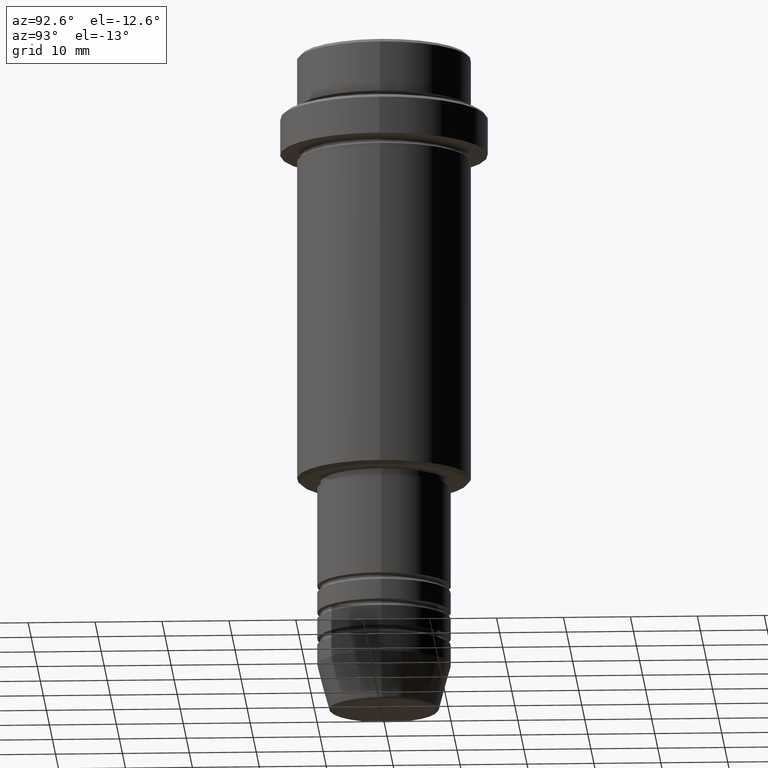
[diagram: clean part render]
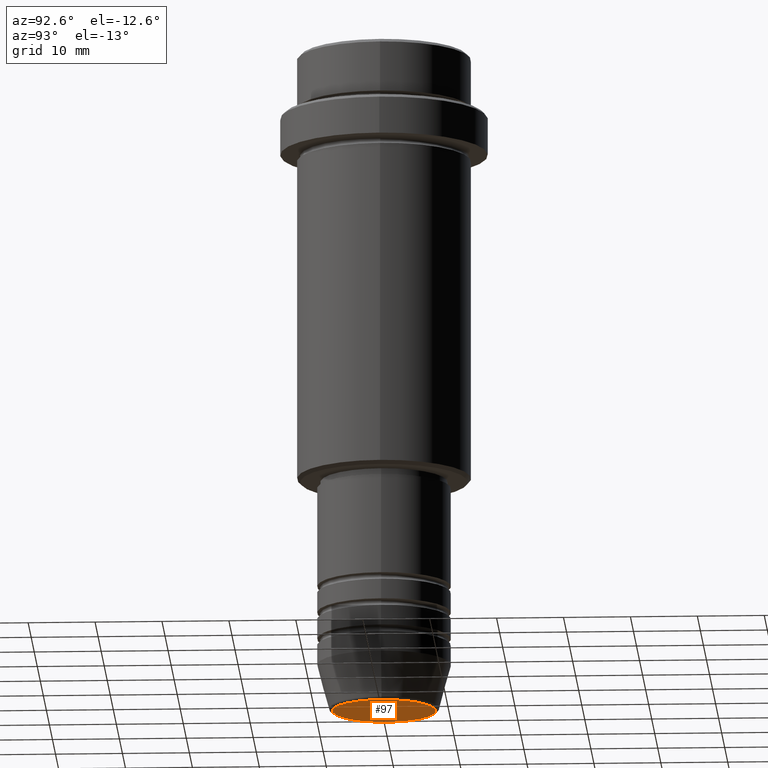
[diagram: same view with one face highlighted and labeled with its STEP entity id]
A machine part, auxiliary view. The second image highlights one B-rep face of the part: STEP entity #97.
In plain terms, the highlighted planar face has unit normal (0, -0, 1).
Its self-contained STEP definition (entity closure, byte-faithful):
#35 = CARTESIAN_POINT ( 'NONE',  ( 0.000000000000000000, 0.000000000000000000, -100.0000000000000000 ) ) ;
#83 = DIRECTION ( 'NONE',  ( 0.000000000000000000, 0.000000000000000000, -1.000000000000000000 ) ) ;
#97 = ADVANCED_FACE ( 'NONE', ( #575 ), #152, .F. ) ;
#147 = DIRECTION ( 'NONE',  ( 1.000000000000000000, 0.000000000000000000, 0.000000000000000000 ) ) ;
#152 = PLANE ( 'NONE',  #1190 ) ;
#214 = CARTESIAN_POINT ( 'NONE',  ( -7.740692158992652949, 9.775343368540035191E-16, -100.0000000000000000 ) ) ;
#242 = EDGE_CURVE ( 'NONE', #654, #804, #1073, .T. ) ;
#502 = CARTESIAN_POINT ( 'NONE',  ( 7.740692158992652949, 0.000000000000000000, -100.0000000000000000 ) ) ;
#575 = FACE_OUTER_BOUND ( 'NONE', #1269, .T. ) ;
#654 = VERTEX_POINT ( 'NONE', #502 ) ;
#803 = ORIENTED_EDGE ( 'NONE', *, *, #1107, .T. ) ;
#804 = VERTEX_POINT ( 'NONE', #214 ) ;
#806 = CARTESIAN_POINT ( 'NONE',  ( 0.000000000000000000, 0.000000000000000000, -100.0000000000000000 ) ) ;
#816 = DIRECTION ( 'NONE',  ( 1.000000000000000000, 0.000000000000000000, 0.000000000000000000 ) ) ;
#839 = DIRECTION ( 'NONE',  ( 1.000000000000000000, 0.000000000000000000, 0.000000000000000000 ) ) ;
#901 = DIRECTION ( 'NONE',  ( 0.000000000000000000, -0.000000000000000000, 1.000000000000000000 ) ) ;
#1027 = CIRCLE ( 'NONE', #1382, 7.740692158992652949 ) ;
#1055 = CARTESIAN_POINT ( 'NONE',  ( 0.000000000000000000, 0.000000000000000000, -100.0000000000000000 ) ) ;
#1073 = CIRCLE ( 'NONE', #1282, 7.740692158992652949 ) ;
#1107 = EDGE_CURVE ( 'NONE', #804, #654, #1027, .T. ) ;
#1190 = AXIS2_PLACEMENT_3D ( 'NONE', #35, #901, #147 ) ;
#1207 = ORIENTED_EDGE ( 'NONE', *, *, #242, .T. ) ;
#1246 = DIRECTION ( 'NONE',  ( 0.000000000000000000, 0.000000000000000000, -1.000000000000000000 ) ) ;
#1269 = EDGE_LOOP ( 'NONE', ( #1207, #803 ) ) ;
#1282 = AXIS2_PLACEMENT_3D ( 'NONE', #1055, #83, #839 ) ;
#1382 = AXIS2_PLACEMENT_3D ( 'NONE', #806, #1246, #816 ) ;